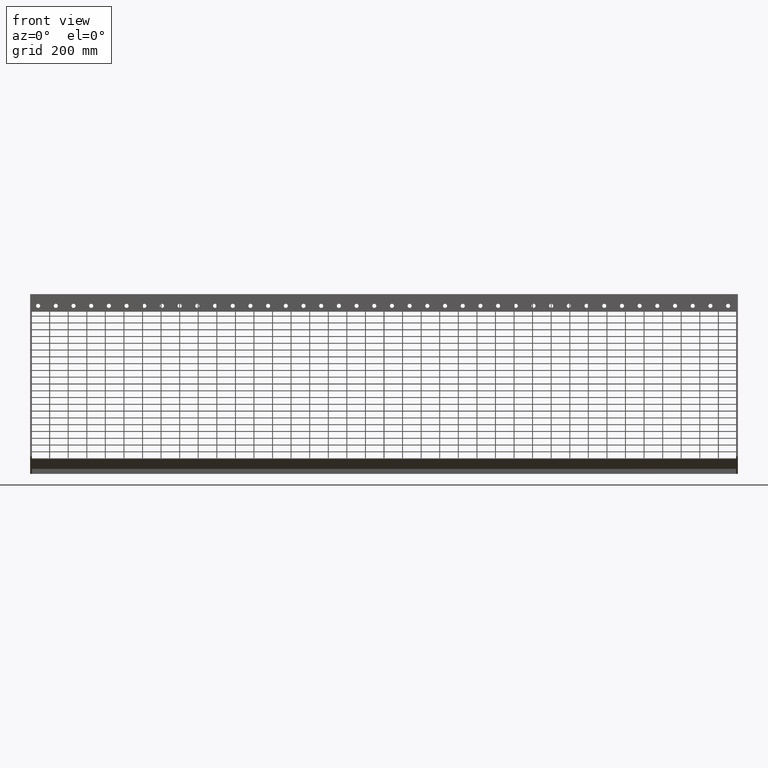
[diagram: clean part render]
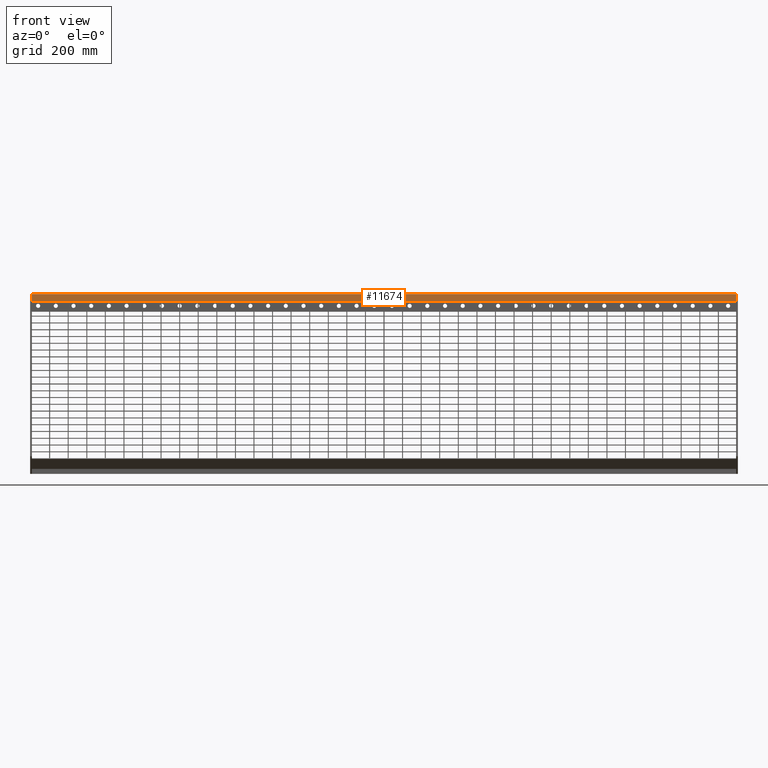
[diagram: same view with one face highlighted and labeled with its STEP entity id]
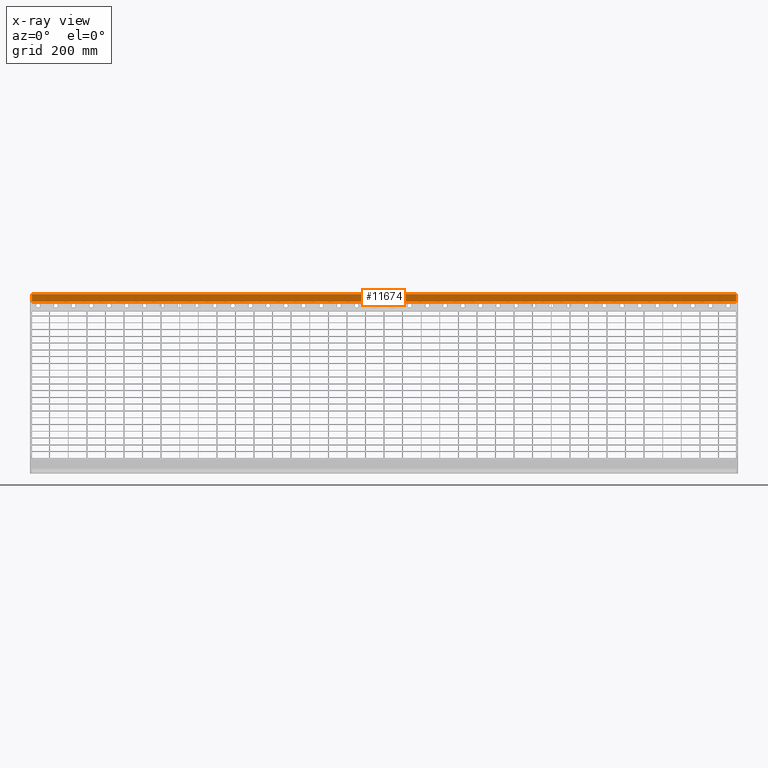
[diagram: x-ray of the same camera — body ghosted, the highlighted face saturated]
A machine part, front view. The second image highlights one B-rep face of the part: STEP entity #11674.
The next image is the same camera in x-ray: the body ghosted, the highlighted face saturated — about 0% of this face is hidden behind the body in this view.
In plain terms, the highlighted planar face has unit normal (0, 1, -0).
Its self-contained STEP definition (entity closure, byte-faithful):
#2184 = CARTESIAN_POINT ( 'NONE',  ( -597.0000000000000000, 48.00000000000011400, -13.00000000000000000 ) ) ;
#3227 = ORIENTED_EDGE ( 'NONE', *, *, #29059, .T. ) ;
#3269 = DIRECTION ( 'NONE',  ( 0.0000000000000000000, 0.0000000000000000000, 1.000000000000000000 ) ) ;
#3946 = VERTEX_POINT ( 'NONE', #12190 ) ;
#4380 = VECTOR ( 'NONE', #19653, 1000.000000000000000 ) ;
#4830 = DIRECTION ( 'NONE',  ( 0.0000000000000000000, -0.0000000000000000000, -1.000000000000000000 ) ) ;
#4986 = ORIENTED_EDGE ( 'NONE', *, *, #15312, .T. ) ;
#6220 = VERTEX_POINT ( 'NONE', #7105 ) ;
#6487 = LINE ( 'NONE', #2184, #34327 ) ;
#7105 = CARTESIAN_POINT ( 'NONE',  ( -597.0000000000000000, 48.00000000000011400, -13.00000000000000000 ) ) ;
#8286 = VERTEX_POINT ( 'NONE', #27210 ) ;
#10724 = DIRECTION ( 'NONE',  ( 0.0000000000000000000, 0.0000000000000000000, 1.000000000000000000 ) ) ;
#10743 = CARTESIAN_POINT ( 'NONE',  ( -673.1577310586392300, 48.00000000000011400, -13.00000000000000000 ) ) ;
#11674 = ADVANCED_FACE ( 'NONE', ( #37161 ), #25015, .F. ) ;
#12190 = CARTESIAN_POINT ( 'NONE',  ( 597.0000000000000000, 48.00000000000011400, -13.00000000000000000 ) ) ;
#12365 = CARTESIAN_POINT ( 'NONE',  ( -673.1577310586392300, 48.00000000000011400, -13.00000000000000000 ) ) ;
#13442 = VECTOR ( 'NONE', #10724, 1000.000000000000000 ) ;
#15312 = EDGE_CURVE ( 'NONE', #6220, #3946, #32637, .T. ) ;
#15606 = CARTESIAN_POINT ( 'NONE',  ( -597.0000000000000000, 48.00000000000011400, 0.0000000000000000000 ) ) ;
#16700 = ORIENTED_EDGE ( 'NONE', *, *, #37837, .T. ) ;
#17801 = LINE ( 'NONE', #32536, #4380 ) ;
#19244 = LINE ( 'NONE', #19457, #13442 ) ;
#19457 = CARTESIAN_POINT ( 'NONE',  ( 597.0000000000000000, 48.00000000000011400, -13.00000000000000000 ) ) ;
#19653 = DIRECTION ( 'NONE',  ( 1.000000000000000000, -0.0000000000000000000, -0.0000000000000000000 ) ) ;
#19856 = DIRECTION ( 'NONE',  ( 1.000000000000000000, -0.0000000000000000000, -0.0000000000000000000 ) ) ;
#21656 = EDGE_LOOP ( 'NONE', ( #37270, #16700, #4986, #3227 ) ) ;
#22995 = VECTOR ( 'NONE', #19856, 1000.000000000000000 ) ;
#25015 = PLANE ( 'NONE',  #36833 ) ;
#27210 = CARTESIAN_POINT ( 'NONE',  ( 597.0000000000000000, 48.00000000000011400, 0.0000000000000000000 ) ) ;
#29059 = EDGE_CURVE ( 'NONE', #3946, #8286, #19244, .T. ) ;
#31174 = DIRECTION ( 'NONE',  ( 0.0000000000000000000, 1.000000000000000000, -0.0000000000000000000 ) ) ;
#32536 = CARTESIAN_POINT ( 'NONE',  ( -673.1577310586392300, 48.00000000000011400, 0.0000000000000000000 ) ) ;
#32637 = LINE ( 'NONE', #10743, #22995 ) ;
#32834 = VERTEX_POINT ( 'NONE', #15606 ) ;
#34327 = VECTOR ( 'NONE', #4830, 1000.000000000000000 ) ;
#36136 = EDGE_CURVE ( 'NONE', #32834, #8286, #17801, .T. ) ;
#36833 = AXIS2_PLACEMENT_3D ( 'NONE', #12365, #31174, #3269 ) ;
#37161 = FACE_OUTER_BOUND ( 'NONE', #21656, .T. ) ;
#37270 = ORIENTED_EDGE ( 'NONE', *, *, #36136, .F. ) ;
#37837 = EDGE_CURVE ( 'NONE', #32834, #6220, #6487, .T. ) ;